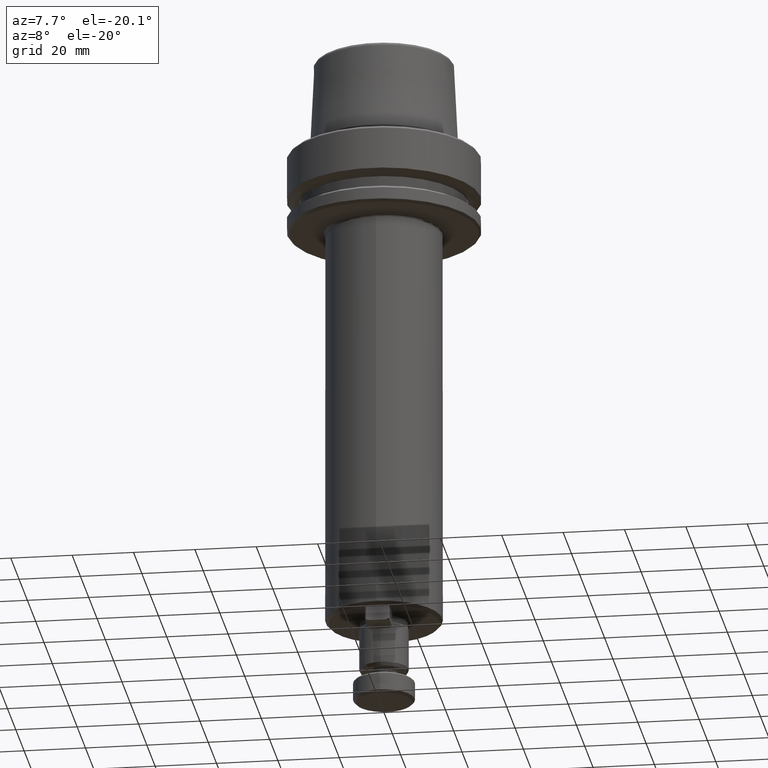
[diagram: clean part render]
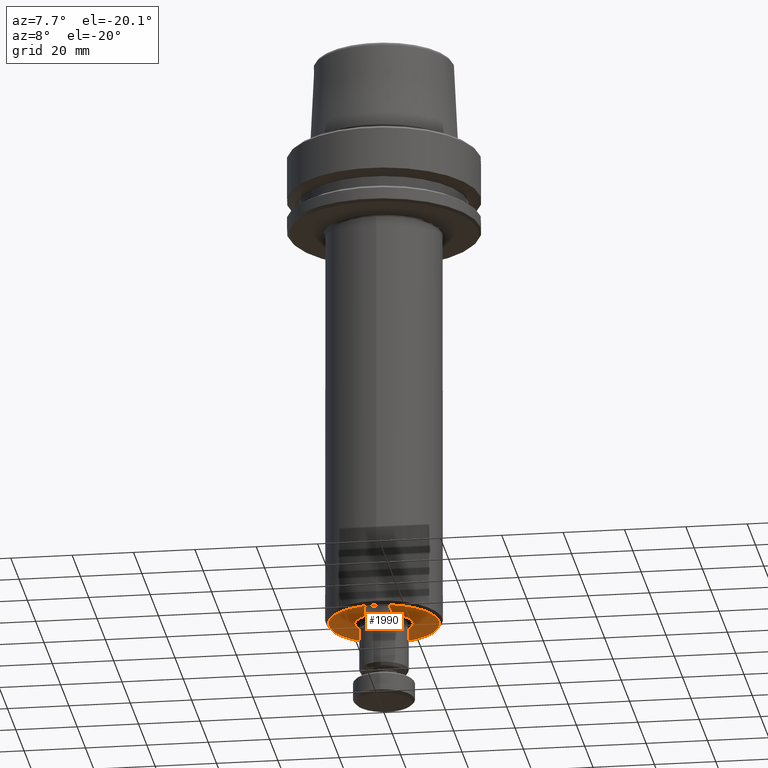
[diagram: same view with one face highlighted and labeled with its STEP entity id]
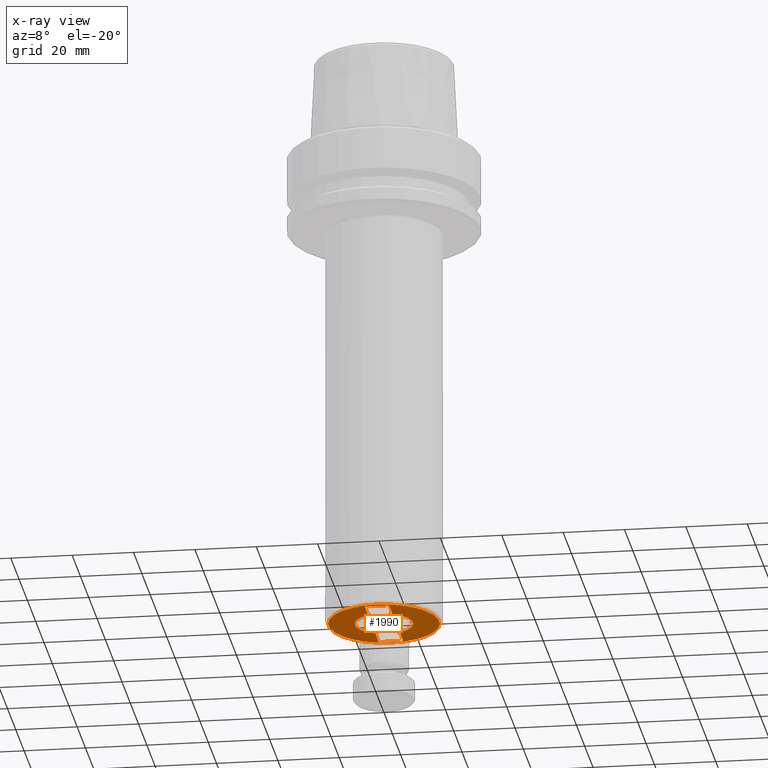
[diagram: x-ray of the same camera — body ghosted, the highlighted face saturated]
A machine part, auxiliary view. The second image highlights one B-rep face of the part: STEP entity #1990.
The next image is the same camera in x-ray: the body ghosted, the highlighted face saturated — about 1% of this face is hidden behind the body in this view.
In plain terms, the highlighted planar face has unit normal (-0, 0, -1).
Its self-contained STEP definition (entity closure, byte-faithful):
#10 = VERTEX_POINT ( 'NONE', #2095 ) ;
#11 = CARTESIAN_POINT ( 'NONE',  ( 2.978321675037787700, 9.000000000000007100, -160.0000000000000000 ) ) ;
#20 = DIRECTION ( 'NONE',  ( -1.204669080539449100E-016, 1.000000000000000000, 0.0000000000000000000 ) ) ;
#45 = CARTESIAN_POINT ( 'NONE',  ( -4.000000000000000000, 16.60000000000000900, -160.0000000000000000 ) ) ;
#72 = VECTOR ( 'NONE', #281, 1000.000000000000000 ) ;
#96 = LINE ( 'NONE', #682, #2376 ) ;
#121 = CARTESIAN_POINT ( 'NONE',  ( -4.000000000000000000, 16.60000000000000900, -160.0000000000000000 ) ) ;
#129 = DIRECTION ( 'NONE',  ( 3.614007241618347300E-016, 1.000000000000000000, -0.0000000000000000000 ) ) ;
#170 = VECTOR ( 'NONE', #1315, 1000.000000000000000 ) ;
#176 = CIRCLE ( 'NONE', #2659, 9.479999999999993300 ) ;
#181 = CARTESIAN_POINT ( 'NONE',  ( 3.600000000000002300, 9.000000000000007100, -160.0000000000000000 ) ) ;
#187 = CARTESIAN_POINT ( 'NONE',  ( -3.600000000000002300, 9.000000000000007100, -160.0000000000000000 ) ) ;
#190 = ORIENTED_EDGE ( 'NONE', *, *, #573, .F. ) ;
#198 = EDGE_CURVE ( 'NONE', #10, #882, #2209, .T. ) ;
#212 = VECTOR ( 'NONE', #2155, 1000.000000000000000 ) ;
#217 = DIRECTION ( 'NONE',  ( 0.7071067811865483500, -0.7071067811865468000, 0.0000000000000000000 ) ) ;
#228 = ORIENTED_EDGE ( 'NONE', *, *, #1832, .F. ) ;
#229 = CIRCLE ( 'NONE', #641, 18.00000000000000400 ) ;
#234 = EDGE_CURVE ( 'NONE', #1961, #1361, #387, .T. ) ;
#278 = VECTOR ( 'NONE', #2211, 1000.000000000000000 ) ;
#281 = DIRECTION ( 'NONE',  ( 0.7071067811865483500, 0.7071067811865468000, 0.0000000000000000000 ) ) ;
#285 = VECTOR ( 'NONE', #823, 1000.000000000000000 ) ;
#287 = VERTEX_POINT ( 'NONE', #906 ) ;
#312 = DIRECTION ( 'NONE',  ( -0.7071067811865483500, -0.7071067811865468000, 0.0000000000000000000 ) ) ;
#317 = VECTOR ( 'NONE', #1566, 1000.000000000000000 ) ;
#330 = CARTESIAN_POINT ( 'NONE',  ( 0.0000000000000000000, 6.520635937181931800E-015, -160.0000000000000000 ) ) ;
#355 = EDGE_CURVE ( 'NONE', #693, #1952, #229, .T. ) ;
#357 = VECTOR ( 'NONE', #402, 1000.000000000000000 ) ;
#387 = LINE ( 'NONE', #1223, #2070 ) ;
#402 = DIRECTION ( 'NONE',  ( -1.000000000000000000, 0.0000000000000000000, 0.0000000000000000000 ) ) ;
#414 = DIRECTION ( 'NONE',  ( -0.0000000000000000000, 4.866146221777561900E-017, -1.000000000000000000 ) ) ;
#460 = EDGE_CURVE ( 'NONE', #2767, #2467, #1202, .T. ) ;
#464 = CARTESIAN_POINT ( 'NONE',  ( -3.600000000000002300, -9.000000000000007100, -160.0000000000000000 ) ) ;
#475 = CARTESIAN_POINT ( 'NONE',  ( 4.000000000000002700, -9.400000000000005700, -160.0000000000000000 ) ) ;
#480 = DIRECTION ( 'NONE',  ( -0.0000000000000000000, 4.866146221777561900E-017, -1.000000000000000000 ) ) ;
#490 = DIRECTION ( 'NONE',  ( 0.0000000000000000000, 1.000000000000000000, 0.0000000000000000000 ) ) ;
#508 = LINE ( 'NONE', #558, #357 ) ;
#512 = ORIENTED_EDGE ( 'NONE', *, *, #1866, .F. ) ;
#526 = CIRCLE ( 'NONE', #2306, 18.00000000000000400 ) ;
#536 = VERTEX_POINT ( 'NONE', #181 ) ;
#558 = CARTESIAN_POINT ( 'NONE',  ( 3.600000000000002300, 9.000000000000007100, -160.0000000000000000 ) ) ;
#560 = EDGE_CURVE ( 'NONE', #739, #2767, #863, .T. ) ;
#573 = EDGE_CURVE ( 'NONE', #536, #2579, #508, .T. ) ;
#574 = DIRECTION ( 'NONE',  ( 0.0000000000000000000, 1.000000000000000000, 0.0000000000000000000 ) ) ;
#577 = LINE ( 'NONE', #2232, #2774 ) ;
#595 = DIRECTION ( 'NONE',  ( 0.0000000000000000000, 1.000000000000000000, 0.0000000000000000000 ) ) ;
#596 = ORIENTED_EDGE ( 'NONE', *, *, #234, .F. ) ;
#641 = AXIS2_PLACEMENT_3D ( 'NONE', #2668, #826, #595 ) ;
#675 = CARTESIAN_POINT ( 'NONE',  ( 3.600000000000000100, -17.00000000000000700, -160.0000000000000000 ) ) ;
#682 = CARTESIAN_POINT ( 'NONE',  ( -3.600000000000000100, 17.00000000000000700, -160.0000000000000000 ) ) ;
#685 = EDGE_CURVE ( 'NONE', #1678, #2551, #2219, .T. ) ;
#693 = VERTEX_POINT ( 'NONE', #830 ) ;
#731 = CARTESIAN_POINT ( 'NONE',  ( 0.0000000000000000000, 6.520635937181931800E-015, -160.0000000000000000 ) ) ;
#739 = VERTEX_POINT ( 'NONE', #464 ) ;
#745 = DIRECTION ( 'NONE',  ( -0.7071067811865483500, 0.7071067811865468000, -0.0000000000000000000 ) ) ;
#757 = CARTESIAN_POINT ( 'NONE',  ( -4.000000000000001800, -16.60000000000000900, -160.0000000000000000 ) ) ;
#769 = LINE ( 'NONE', #675, #170 ) ;
#779 = CARTESIAN_POINT ( 'NONE',  ( 3.600000000000002300, -9.000000000000007100, -160.0000000000000000 ) ) ;
#823 = DIRECTION ( 'NONE',  ( -1.000000000000000000, 0.0000000000000000000, 0.0000000000000000000 ) ) ;
#826 = DIRECTION ( 'NONE',  ( -0.0000000000000000000, 4.866146221777561900E-017, -1.000000000000000000 ) ) ;
#830 = CARTESIAN_POINT ( 'NONE',  ( 2.265596578422603400E-015, 18.00000000000001100, -160.0000000000000000 ) ) ;
#863 = LINE ( 'NONE', #1907, #278 ) ;
#872 = EDGE_CURVE ( 'NONE', #1219, #739, #2477, .T. ) ;
#882 = VERTEX_POINT ( 'NONE', #2608 ) ;
#899 = DIRECTION ( 'NONE',  ( 1.000000000000000000, 0.0000000000000000000, 0.0000000000000000000 ) ) ;
#902 = LINE ( 'NONE', #2428, #317 ) ;
#906 = CARTESIAN_POINT ( 'NONE',  ( 4.000000000000001800, 16.60000000000000900, -160.0000000000000000 ) ) ;
#907 = CARTESIAN_POINT ( 'NONE',  ( -4.000000000000001800, -16.60000000000000900, -160.0000000000000000 ) ) ;
#935 = CARTESIAN_POINT ( 'NONE',  ( -4.000000000000002700, -9.400000000000005700, -160.0000000000000000 ) ) ;
#995 = ORIENTED_EDGE ( 'NONE', *, *, #355, .T. ) ;
#1006 = DIRECTION ( 'NONE',  ( -3.614007241618347300E-016, -1.000000000000000000, 0.0000000000000000000 ) ) ;
#1028 = EDGE_CURVE ( 'NONE', #1361, #1191, #2630, .T. ) ;
#1029 = CARTESIAN_POINT ( 'NONE',  ( -3.600000000000001400, -17.00000000000000700, -160.0000000000000000 ) ) ;
#1037 = FACE_BOUND ( 'NONE', #1058, .T. ) ;
#1038 = CARTESIAN_POINT ( 'NONE',  ( 4.000000000000002700, 9.400000000000005700, -160.0000000000000000 ) ) ;
#1053 = VERTEX_POINT ( 'NONE', #1168 ) ;
#1058 = EDGE_LOOP ( 'NONE', ( #1950, #1251, #1742, #2254, #512, #1468, #2789, #2097, #2029, #1786, #2558, #190, #1619, #1912, #1993, #2202, #1641, #2017, #596, #228 ) ) ;
#1060 = EDGE_CURVE ( 'NONE', #2233, #536, #1953, .T. ) ;
#1066 = VECTOR ( 'NONE', #2719, 1000.000000000000000 ) ;
#1077 = PLANE ( 'NONE',  #1102 ) ;
#1102 = AXIS2_PLACEMENT_3D ( 'NONE', #2204, #2801, #1531 ) ;
#1137 = LINE ( 'NONE', #2335, #2780 ) ;
#1168 = CARTESIAN_POINT ( 'NONE',  ( 4.000000000000000000, -16.60000000000000900, -160.0000000000000000 ) ) ;
#1172 = EDGE_CURVE ( 'NONE', #1952, #693, #526, .T. ) ;
#1188 = ORIENTED_EDGE ( 'NONE', *, *, #1172, .T. ) ;
#1191 = VERTEX_POINT ( 'NONE', #45 ) ;
#1202 = CIRCLE ( 'NONE', #1957, 9.479999999999993300 ) ;
#1219 = VERTEX_POINT ( 'NONE', #935 ) ;
#1223 = CARTESIAN_POINT ( 'NONE',  ( -4.000000000000002700, 9.400000000000005700, -160.0000000000000000 ) ) ;
#1235 = DIRECTION ( 'NONE',  ( 1.000000000000000000, -0.0000000000000000000, -0.0000000000000000000 ) ) ;
#1251 = ORIENTED_EDGE ( 'NONE', *, *, #560, .F. ) ;
#1315 = DIRECTION ( 'NONE',  ( -0.7071067811865468000, -0.7071067811865483500, 0.0000000000000000000 ) ) ;
#1361 = VERTEX_POINT ( 'NONE', #1594 ) ;
#1405 = CARTESIAN_POINT ( 'NONE',  ( 4.000000000000002700, 9.400000000000005700, -160.0000000000000000 ) ) ;
#1442 = CARTESIAN_POINT ( 'NONE',  ( 3.600000000000001400, 17.00000000000000700, -160.0000000000000000 ) ) ;
#1454 = LINE ( 'NONE', #2355, #285 ) ;
#1468 = ORIENTED_EDGE ( 'NONE', *, *, #2073, .F. ) ;
#1470 = CARTESIAN_POINT ( 'NONE',  ( -4.000000000000002700, -9.400000000000005700, -160.0000000000000000 ) ) ;
#1475 = VERTEX_POINT ( 'NONE', #757 ) ;
#1490 = CARTESIAN_POINT ( 'NONE',  ( 2.978321675037749500, -9.000000000000007100, -160.0000000000000000 ) ) ;
#1502 = VERTEX_POINT ( 'NONE', #2287 ) ;
#1531 = DIRECTION ( 'NONE',  ( 0.0000000000000000000, 1.000000000000000000, 4.866146221777561900E-017 ) ) ;
#1566 = DIRECTION ( 'NONE',  ( -1.000000000000000000, 0.0000000000000000000, 0.0000000000000000000 ) ) ;
#1594 = CARTESIAN_POINT ( 'NONE',  ( -4.000000000000002700, 9.400000000000005700, -160.0000000000000000 ) ) ;
#1619 = ORIENTED_EDGE ( 'NONE', *, *, #1060, .F. ) ;
#1620 = VECTOR ( 'NONE', #1235, 1000.000000000000000 ) ;
#1626 = DIRECTION ( 'NONE',  ( 0.0000000000000000000, 1.000000000000000000, 0.0000000000000000000 ) ) ;
#1639 = CARTESIAN_POINT ( 'NONE',  ( 4.000000000000001800, 16.60000000000000900, -160.0000000000000000 ) ) ;
#1641 = ORIENTED_EDGE ( 'NONE', *, *, #2537, .F. ) ;
#1663 = LINE ( 'NONE', #907, #2181 ) ;
#1668 = EDGE_CURVE ( 'NONE', #2579, #1924, #176, .T. ) ;
#1671 = LINE ( 'NONE', #1442, #1066 ) ;
#1678 = VERTEX_POINT ( 'NONE', #779 ) ;
#1699 = LINE ( 'NONE', #1639, #1762 ) ;
#1738 = EDGE_CURVE ( 'NONE', #882, #287, #1671, .T. ) ;
#1742 = ORIENTED_EDGE ( 'NONE', *, *, #872, .F. ) ;
#1760 = CARTESIAN_POINT ( 'NONE',  ( 3.600000000000001400, 17.00000000000000700, -160.0000000000000000 ) ) ;
#1762 = VECTOR ( 'NONE', #2704, 1000.000000000000000 ) ;
#1763 = EDGE_CURVE ( 'NONE', #2551, #1053, #1137, .T. ) ;
#1786 = ORIENTED_EDGE ( 'NONE', *, *, #2567, .F. ) ;
#1832 = EDGE_CURVE ( 'NONE', #2467, #1961, #1454, .T. ) ;
#1866 = EDGE_CURVE ( 'NONE', #1502, #1475, #1977, .T. ) ;
#1871 = EDGE_LOOP ( 'NONE', ( #1188, #995 ) ) ;
#1872 = DIRECTION ( 'NONE',  ( -0.0000000000000000000, 4.866146221777561900E-017, -1.000000000000000000 ) ) ;
#1886 = VECTOR ( 'NONE', #312, 1000.000000000000000 ) ;
#1907 = CARTESIAN_POINT ( 'NONE',  ( -3.600000000000002300, -9.000000000000007100, -160.0000000000000000 ) ) ;
#1912 = ORIENTED_EDGE ( 'NONE', *, *, #2768, .F. ) ;
#1924 = VERTEX_POINT ( 'NONE', #1490 ) ;
#1950 = ORIENTED_EDGE ( 'NONE', *, *, #460, .F. ) ;
#1952 = VERTEX_POINT ( 'NONE', #2381 ) ;
#1953 = LINE ( 'NONE', #1038, #1886 ) ;
#1957 = AXIS2_PLACEMENT_3D ( 'NONE', #731, #414, #1626 ) ;
#1961 = VERTEX_POINT ( 'NONE', #187 ) ;
#1977 = LINE ( 'NONE', #1029, #212 ) ;
#1990 = ADVANCED_FACE ( 'NONE', ( #2750, #1037 ), #1077, .T. ) ;
#1993 = ORIENTED_EDGE ( 'NONE', *, *, #1738, .F. ) ;
#2017 = ORIENTED_EDGE ( 'NONE', *, *, #1028, .F. ) ;
#2029 = ORIENTED_EDGE ( 'NONE', *, *, #685, .F. ) ;
#2070 = VECTOR ( 'NONE', #745, 1000.000000000000000 ) ;
#2073 = EDGE_CURVE ( 'NONE', #2365, #1502, #902, .T. ) ;
#2088 = CARTESIAN_POINT ( 'NONE',  ( -2.978321675037744600, -9.000000000000007100, -160.0000000000000000 ) ) ;
#2095 = CARTESIAN_POINT ( 'NONE',  ( -3.600000000000000100, 17.00000000000000700, -160.0000000000000000 ) ) ;
#2097 = ORIENTED_EDGE ( 'NONE', *, *, #1763, .F. ) ;
#2111 = CARTESIAN_POINT ( 'NONE',  ( 4.000000000000002700, -9.400000000000005700, -160.0000000000000000 ) ) ;
#2155 = DIRECTION ( 'NONE',  ( -0.7071067811865468000, 0.7071067811865483500, 0.0000000000000000000 ) ) ;
#2179 = CARTESIAN_POINT ( 'NONE',  ( -2.978321675037787700, 9.000000000000007100, -160.0000000000000000 ) ) ;
#2181 = VECTOR ( 'NONE', #20, 1000.000000000000000 ) ;
#2202 = ORIENTED_EDGE ( 'NONE', *, *, #198, .F. ) ;
#2204 = CARTESIAN_POINT ( 'NONE',  ( 0.0000000000000000000, 18.00000000000001100, -160.0000000000000000 ) ) ;
#2209 = LINE ( 'NONE', #1760, #1620 ) ;
#2211 = DIRECTION ( 'NONE',  ( 1.000000000000000000, 0.0000000000000000000, 0.0000000000000000000 ) ) ;
#2219 = LINE ( 'NONE', #2111, #2745 ) ;
#2221 = DIRECTION ( 'NONE',  ( 0.7071067811865468000, 0.7071067811865483500, -0.0000000000000000000 ) ) ;
#2232 = CARTESIAN_POINT ( 'NONE',  ( -3.600000000000002300, -9.000000000000007100, -160.0000000000000000 ) ) ;
#2233 = VERTEX_POINT ( 'NONE', #1405 ) ;
#2254 = ORIENTED_EDGE ( 'NONE', *, *, #2606, .F. ) ;
#2287 = CARTESIAN_POINT ( 'NONE',  ( -3.600000000000001400, -17.00000000000000700, -160.0000000000000000 ) ) ;
#2306 = AXIS2_PLACEMENT_3D ( 'NONE', #2636, #480, #490 ) ;
#2335 = CARTESIAN_POINT ( 'NONE',  ( 4.000000000000000000, -16.60000000000000900, -160.0000000000000000 ) ) ;
#2355 = CARTESIAN_POINT ( 'NONE',  ( 3.600000000000002300, 9.000000000000007100, -160.0000000000000000 ) ) ;
#2365 = VERTEX_POINT ( 'NONE', #2532 ) ;
#2376 = VECTOR ( 'NONE', #2221, 1000.000000000000000 ) ;
#2381 = CARTESIAN_POINT ( 'NONE',  ( 0.0000000000000000000, -17.99999999999999600, -160.0000000000000000 ) ) ;
#2428 = CARTESIAN_POINT ( 'NONE',  ( -3.600000000000001400, -17.00000000000000700, -160.0000000000000000 ) ) ;
#2467 = VERTEX_POINT ( 'NONE', #2179 ) ;
#2477 = LINE ( 'NONE', #1470, #72 ) ;
#2508 = VECTOR ( 'NONE', #129, 1000.000000000000000 ) ;
#2525 = EDGE_CURVE ( 'NONE', #1053, #2365, #769, .T. ) ;
#2532 = CARTESIAN_POINT ( 'NONE',  ( 3.600000000000000100, -17.00000000000000700, -160.0000000000000000 ) ) ;
#2537 = EDGE_CURVE ( 'NONE', #1191, #10, #96, .T. ) ;
#2551 = VERTEX_POINT ( 'NONE', #475 ) ;
#2558 = ORIENTED_EDGE ( 'NONE', *, *, #1668, .F. ) ;
#2567 = EDGE_CURVE ( 'NONE', #1924, #1678, #577, .T. ) ;
#2579 = VERTEX_POINT ( 'NONE', #11 ) ;
#2606 = EDGE_CURVE ( 'NONE', #1475, #1219, #1663, .T. ) ;
#2608 = CARTESIAN_POINT ( 'NONE',  ( 3.600000000000001400, 17.00000000000000700, -160.0000000000000000 ) ) ;
#2630 = LINE ( 'NONE', #121, #2508 ) ;
#2636 = CARTESIAN_POINT ( 'NONE',  ( 0.0000000000000000000, 6.520635937181931800E-015, -160.0000000000000000 ) ) ;
#2659 = AXIS2_PLACEMENT_3D ( 'NONE', #330, #1872, #574 ) ;
#2668 = CARTESIAN_POINT ( 'NONE',  ( 0.0000000000000000000, 6.520635937181931800E-015, -160.0000000000000000 ) ) ;
#2704 = DIRECTION ( 'NONE',  ( 1.204669080539449100E-016, -1.000000000000000000, 0.0000000000000000000 ) ) ;
#2719 = DIRECTION ( 'NONE',  ( 0.7071067811865468000, -0.7071067811865483500, 0.0000000000000000000 ) ) ;
#2745 = VECTOR ( 'NONE', #217, 1000.000000000000000 ) ;
#2750 = FACE_OUTER_BOUND ( 'NONE', #1871, .T. ) ;
#2767 = VERTEX_POINT ( 'NONE', #2088 ) ;
#2768 = EDGE_CURVE ( 'NONE', #287, #2233, #1699, .T. ) ;
#2774 = VECTOR ( 'NONE', #899, 1000.000000000000000 ) ;
#2780 = VECTOR ( 'NONE', #1006, 1000.000000000000000 ) ;
#2789 = ORIENTED_EDGE ( 'NONE', *, *, #2525, .F. ) ;
#2801 = DIRECTION ( 'NONE',  ( -0.0000000000000000000, 4.866146221777561900E-017, -1.000000000000000000 ) ) ;